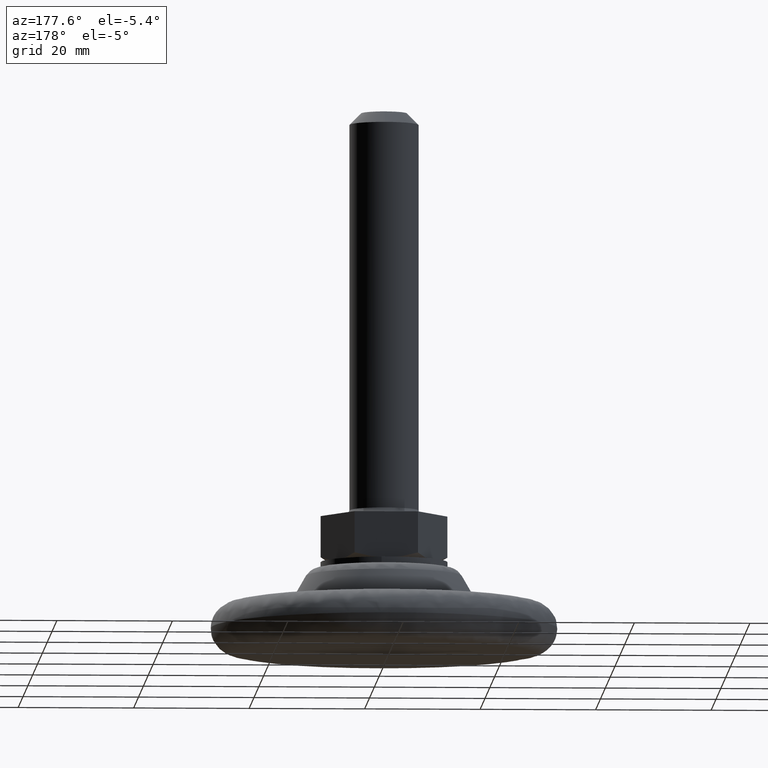
[diagram: clean part render]
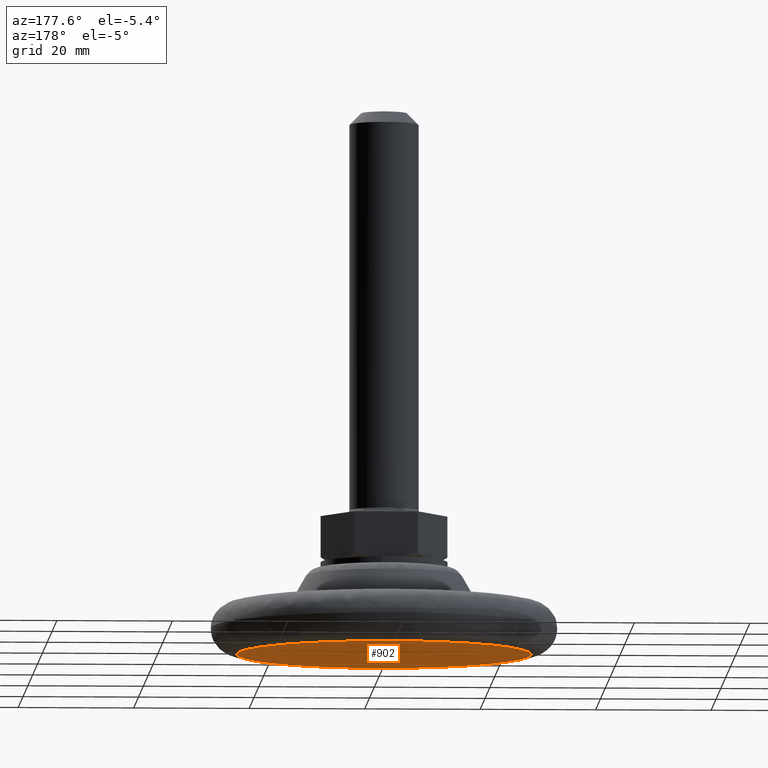
[diagram: same view with one face highlighted and labeled with its STEP entity id]
A machine part, auxiliary view. The second image highlights one B-rep face of the part: STEP entity #902.
In plain terms, the highlighted face is a freeform B-spline surface patch.
Its self-contained STEP definition (entity closure, byte-faithful):
#801=CARTESIAN_POINT('',(-28.047449901152099,-28.045235818201661,0.0));
#802=CARTESIAN_POINT('',(28.047451269078699,-28.045235818201661,0.0));
#803=CARTESIAN_POINT('',(-28.047449901152099,28.045237186020270,0.0));
#804=CARTESIAN_POINT('',(28.047451269078699,28.045237186020270,0.0));
#805=B_SPLINE_SURFACE_WITH_KNOTS('',1,1,((#801,#803),(#802,#804)),.UNSPECIFIED.,.F.,.F.,.U.,(2,2),(2,2),(0.0,56.094901170230798),(0.0,56.090473004221920),.UNSPECIFIED.);
#806=CARTESIAN_POINT('',(-25.500000000000000,0.0,0.0));
#807=VERTEX_POINT('',#806);
#808=CARTESIAN_POINT('',(25.491946827902861,0.640817433986055,8.121964E-016));
#809=VERTEX_POINT('',#808);
#810=CARTESIAN_POINT('',(-25.500000000000000,0.0,0.0));
#811=CARTESIAN_POINT('',(-25.500220714525661,1.655615673293533,3.278321E-019));
#812=CARTESIAN_POINT('',(-25.221851700919469,4.501116047045892,5.330460E-018));
#813=CARTESIAN_POINT('',(-24.285297348154881,7.955062956958385,2.093674E-017));
#814=CARTESIAN_POINT('',(-23.235740489929459,10.602825443089690,3.818128E-017));
#815=CARTESIAN_POINT('',(-21.956678466083371,13.091433529889491,5.904894E-017));
#816=CARTESIAN_POINT('',(-20.325409675625799,15.493773529013760,8.550837E-017));
#817=CARTESIAN_POINT('',(-18.023701096718028,18.160128073018861,1.226977E-016));
#818=CARTESIAN_POINT('',(-15.560061661502500,20.315024161924079,1.623634E-016));
#819=CARTESIAN_POINT('',(-12.604701939168550,22.232543304196419,2.098126E-016));
#820=CARTESIAN_POINT('',(-9.492193057467937,23.774583042683091,2.596892E-016));
#821=CARTESIAN_POINT('',(-6.126275884701708,24.844552147872509,3.135070E-016));
#822=CARTESIAN_POINT('',(-2.241564047349641,25.490289020268090,3.755019E-016));
#823=CARTESIAN_POINT('',(1.549124302566076,25.572671554994251,4.358867E-016));
#824=CARTESIAN_POINT('',(5.194984871098133,25.037568926079640,4.938414E-016));
#825=CARTESIAN_POINT('',(8.287167446137683,24.170022578494731,5.429121E-016));
#826=CARTESIAN_POINT('',(11.267981506106249,22.968896402274339,5.901424E-016));
#827=CARTESIAN_POINT('',(14.055513845561521,21.361427983106910,6.342133E-016));
#828=CARTESIAN_POINT('',(16.816512392245510,19.258591194346511,6.777625E-016));
#829=CARTESIAN_POINT('',(18.891042500994050,17.224001969635289,7.103931E-016));
#830=CARTESIAN_POINT('',(20.796653180101359,14.835237029746869,7.402627E-016));
#831=CARTESIAN_POINT('',(22.390551722352392,12.348126718756260,7.651484E-016));
#832=CARTESIAN_POINT('',(23.633106843967539,9.722902642422710,7.844113E-016));
#833=CARTESIAN_POINT('',(24.638400654274751,6.782896176102862,7.998326E-016));
#834=CARTESIAN_POINT('',(25.274523809690908,3.895865672004422,8.093853E-016));
#835=CARTESIAN_POINT('',(25.465962092737200,1.675235451897083,8.119896E-016));
#836=CARTESIAN_POINT('',(25.491946827902861,0.640817433986055,8.121964E-016));
#837=B_SPLINE_CURVE_WITH_KNOTS('',3,(#810,#811,#812,#813,#814,#815,#816,#817,#818,#819,#820,#821,#822,#823,#824,#825,#826,#827,#828,#829,#830,#831,#832,#833,#834,#835,#836),.UNSPECIFIED.,.F.,.U.,(4,1,1,1,1,1,1,1,1,1,1,1,1,1,1,1,1,1,1,1,1,1,1,1,4),(0.000000067959277,4.966808270982170,8.536758021931050,10.709769248001480,13.503642382350240,16.918376490205048,19.401820962857489,24.058265608092171,26.696930529852271,29.956414255740562,34.457674090030437,37.251501617637942,41.752671299565407,45.788289588989777,48.271703156370982,51.375994944663617,55.411578001591003,57.895028120647048,61.775399220717041,64.103616526424688,67.052692375273381,70.622660673969449,72.795635549075413,76.365609622118171,79.469850444298373),.UNSPECIFIED.);
#838=EDGE_CURVE('',#807,#809,#837,.T.);
#839=ORIENTED_EDGE('',*,*,#838,.T.);
#840=CARTESIAN_POINT('',(25.500000000000000,0.0,0.0));
#841=VERTEX_POINT('',#840);
#842=CARTESIAN_POINT('',(25.491946827902854,0.640817433986055,8.121964E-016));
#843=CARTESIAN_POINT('',(25.500000000591253,0.320459319236690,4.060982E-016));
#844=CARTESIAN_POINT('',(25.500000000000000,0.0,0.0));
#852=(BOUNDED_CURVE()B_SPLINE_CURVE(2,(#842,#843,#844),.UNSPECIFIED.,.F.,.U.)B_SPLINE_CURVE_WITH_KNOTS((3,3),(0.495579891768769,0.500000000000000),.UNSPECIFIED.)CURVE()GEOMETRIC_REPRESENTATION_ITEM()RATIONAL_B_SPLINE_CURVE((0.989826157679230,0.994821521090604,1.0))REPRESENTATION_ITEM(''));
#853=EDGE_CURVE('',#809,#841,#852,.T.);
#854=ORIENTED_EDGE('',*,*,#853,.T.);
#855=CARTESIAN_POINT('',(-25.491946827902861,-0.640817433986044,7.497198E-016));
#856=VERTEX_POINT('',#855);
#857=CARTESIAN_POINT('',(25.500000000000000,0.0,0.0));
#858=CARTESIAN_POINT('',(25.500023744444348,-0.983011551467037,1.812527E-019));
#859=CARTESIAN_POINT('',(25.386176622096500,-2.949041638019774,2.218054E-018));
#860=CARTESIAN_POINT('',(24.867385116047839,-5.909758926432923,1.039145E-017));
#861=CARTESIAN_POINT('',(23.926837949696719,-9.036934518398313,2.479558E-017));
#862=CARTESIAN_POINT('',(22.554640819734509,-12.060186538575030,4.552592E-017));
#863=CARTESIAN_POINT('',(20.902618058018071,-14.695185134339789,7.029809E-017));
#864=CARTESIAN_POINT('',(19.037995012113580,-17.050924526419930,9.814397E-017));
#865=CARTESIAN_POINT('',(16.765161742659821,-19.324739611626029,1.319756E-016));
#866=CARTESIAN_POINT('',(14.278991412682229,-21.197467444833560,1.688692E-016));
#867=CARTESIAN_POINT('',(11.553378852545160,-22.794258135488690,2.092318E-016));
#868=CARTESIAN_POINT('',(8.803398839276905,-24.013577034141790,2.498828E-016));
#869=CARTESIAN_POINT('',(5.418653880957090,-24.999457734270340,2.998220E-016));
#870=CARTESIAN_POINT('',(2.390765489815912,-25.446157148256280,3.444156E-016));
#871=CARTESIAN_POINT('',(-0.663088669253184,-25.540299477600339,3.893259E-016));
#872=CARTESIAN_POINT('',(-3.713091880372069,-25.309037681984002,4.341194E-016));
#873=CARTESIAN_POINT('',(-7.465503820065539,-24.498950091096361,4.891316E-016));
#874=CARTESIAN_POINT('',(-11.236859868169240,-23.019055187626901,5.442986E-016));
#875=CARTESIAN_POINT('',(-14.444437539384531,-21.103640274611571,5.910974E-016));
#876=CARTESIAN_POINT('',(-16.964189828192708,-19.110753694012320,6.277706E-016));
#877=CARTESIAN_POINT('',(-19.244504808357782,-16.847023577106270,6.608739E-016));
#878=CARTESIAN_POINT('',(-21.141275881682549,-14.378276993423210,6.883011E-016));
#879=CARTESIAN_POINT('',(-22.896789836244238,-11.384425767861080,7.135547E-016));
#880=CARTESIAN_POINT('',(-24.075992942091322,-8.614810087330442,7.303778E-016));
#881=CARTESIAN_POINT('',(-25.129790823941239,-4.875470670503195,7.451782E-016));
#882=CARTESIAN_POINT('',(-25.449282578583471,-2.347654459257143,7.494079E-016));
#883=CARTESIAN_POINT('',(-25.491946827902861,-0.640817433986044,7.497198E-016));
#884=B_SPLINE_CURVE_WITH_KNOTS('',3,(#857,#858,#859,#860,#861,#862,#863,#864,#865,#866,#867,#868,#869,#870,#871,#872,#873,#874,#875,#876,#877,#878,#879,#880,#881,#882,#883),.UNSPECIFIED.,.F.,.U.,(4,1,1,1,1,1,1,1,1,1,1,1,1,1,1,1,1,1,1,1,1,1,1,1,4),(0.000000067983038,2.949037032099753,5.898115352633269,9.002432915835925,12.727568291966170,15.831877427442491,18.315312807716818,21.730046885683599,25.455199004081528,27.628204016744728,31.198168804509301,34.457674090039554,38.182826362849831,40.355739594510709,43.615261970062733,47.340404126099557,51.841630253181961,55.722015723749386,58.515885321599399,61.464966857270603,65.345346537326662,67.828762355816394,71.864339680581267,74.347811868802225,79.469850444298373),.UNSPECIFIED.);
#885=EDGE_CURVE('',#841,#856,#884,.T.);
#886=ORIENTED_EDGE('',*,*,#885,.T.);
#887=CARTESIAN_POINT('',(-25.491946827902861,-0.640817433986044,7.497198E-016));
#888=CARTESIAN_POINT('',(-25.500000000591260,-0.320459319236684,3.748599E-016));
#889=CARTESIAN_POINT('',(-25.500000000000000,0.0,0.0));
#897=(BOUNDED_CURVE()B_SPLINE_CURVE(2,(#887,#888,#889),.UNSPECIFIED.,.F.,.U.)B_SPLINE_CURVE_WITH_KNOTS((3,3),(0.995579891768770,1.0),.UNSPECIFIED.)CURVE()GEOMETRIC_REPRESENTATION_ITEM()RATIONAL_B_SPLINE_CURVE((0.989826157679230,0.994821521090604,1.0))REPRESENTATION_ITEM(''));
#898=EDGE_CURVE('',#856,#807,#897,.T.);
#899=ORIENTED_EDGE('',*,*,#898,.T.);
#900=EDGE_LOOP('',(#839,#854,#886,#899));
#901=FACE_OUTER_BOUND('',#900,.T.);
#902=ADVANCED_FACE('',(#901),#805,.F.);